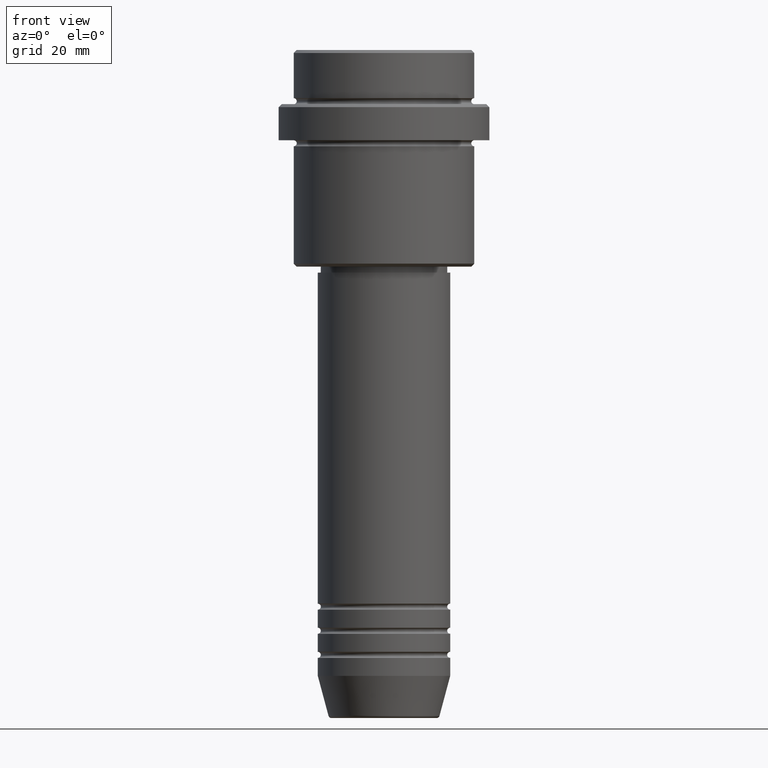
[diagram: clean part render]
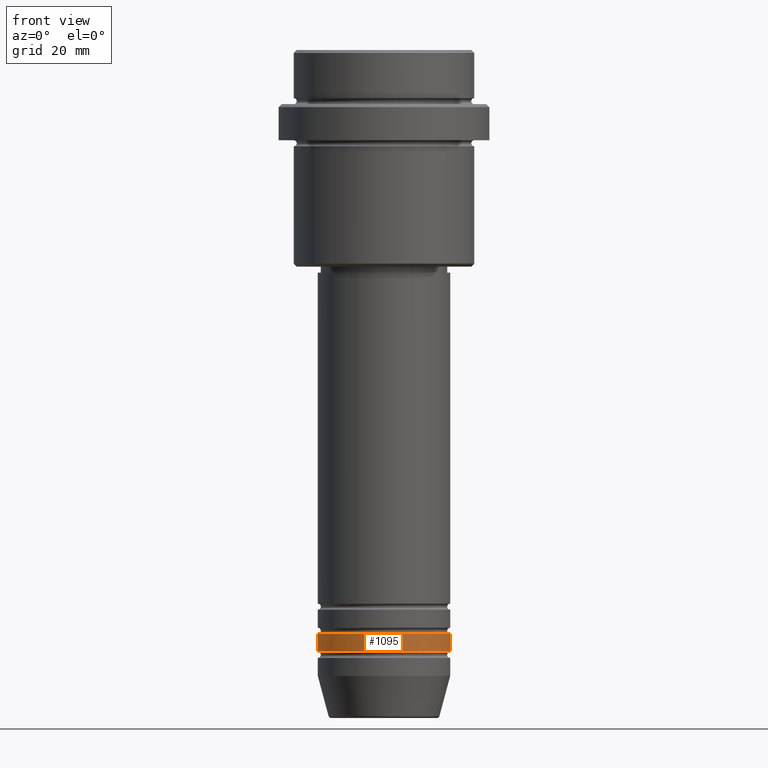
[diagram: same view with one face highlighted and labeled with its STEP entity id]
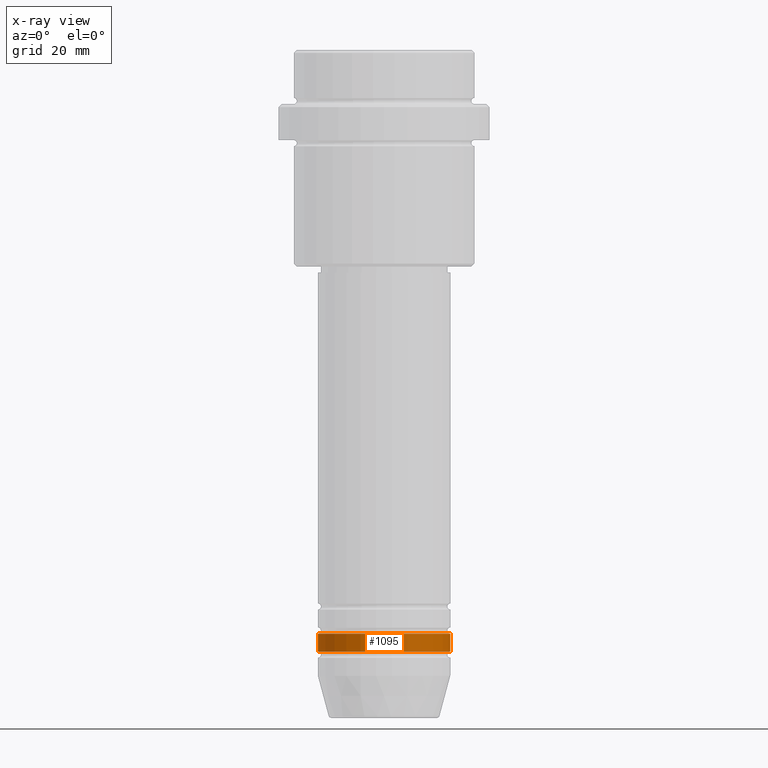
[diagram: x-ray of the same camera — body ghosted, the highlighted face saturated]
A machine part, front view. The second image highlights one B-rep face of the part: STEP entity #1095.
The next image is the same camera in x-ray: the body ghosted, the highlighted face saturated — about 0% of this face is hidden behind the body in this view.
In plain terms, the highlighted cylindrical surface (partial cylindrical patch) has radius 11 mm, axis along (-0, -0, 1).
Its self-contained STEP definition (entity closure, byte-faithful):
#9 = CARTESIAN_POINT ( 'NONE',  ( 11.00000000000000000, 0.000000000000000000, 0.000000000000000000 ) ) ;
#34 = DIRECTION ( 'NONE',  ( 1.000000000000000000, 0.000000000000000000, 0.000000000000000000 ) ) ;
#178 = VECTOR ( 'NONE', #329, 1000.000000000000000 ) ;
#206 = EDGE_LOOP ( 'NONE', ( #957, #490, #375, #979 ) ) ;
#228 = CYLINDRICAL_SURFACE ( 'NONE', #434, 11.00000000000000000 ) ;
#247 = CARTESIAN_POINT ( 'NONE',  ( 0.000000000000000000, 0.000000000000000000, -96.99999999999988631 ) ) ;
#319 = FACE_OUTER_BOUND ( 'NONE', #206, .T. ) ;
#329 = DIRECTION ( 'NONE',  ( -0.000000000000000000, -0.000000000000000000, 1.000000000000000000 ) ) ;
#375 = ORIENTED_EDGE ( 'NONE', *, *, #1047, .T. ) ;
#409 = CIRCLE ( 'NONE', #784, 11.00000000000000000 ) ;
#413 = EDGE_CURVE ( 'NONE', #793, #1364, #1349, .T. ) ;
#434 = AXIS2_PLACEMENT_3D ( 'NONE', #1226, #1319, #1003 ) ;
#483 = CARTESIAN_POINT ( 'NONE',  ( -11.00000000000000000, 1.347111479062088405E-15, -99.99999999999988631 ) ) ;
#490 = ORIENTED_EDGE ( 'NONE', *, *, #413, .T. ) ;
#568 = CARTESIAN_POINT ( 'NONE',  ( 11.00000000000000000, 0.000000000000000000, -96.99999999999988631 ) ) ;
#659 = VERTEX_POINT ( 'NONE', #813 ) ;
#660 = CARTESIAN_POINT ( 'NONE',  ( 11.00000000000000000, 0.000000000000000000, -99.99999999999988631 ) ) ;
#709 = DIRECTION ( 'NONE',  ( -0.000000000000000000, -0.000000000000000000, 1.000000000000000000 ) ) ;
#763 = EDGE_CURVE ( 'NONE', #659, #1138, #409, .T. ) ;
#773 = LINE ( 'NONE', #887, #178 ) ;
#784 = AXIS2_PLACEMENT_3D ( 'NONE', #247, #1129, #945 ) ;
#793 = VERTEX_POINT ( 'NONE', #483 ) ;
#813 = CARTESIAN_POINT ( 'NONE',  ( -11.00000000000000000, 1.347111479062088405E-15, -96.99999999999988631 ) ) ;
#887 = CARTESIAN_POINT ( 'NONE',  ( -11.00000000000000000, 1.347111479062088405E-15, 0.000000000000000000 ) ) ;
#912 = EDGE_CURVE ( 'NONE', #793, #659, #773, .T. ) ;
#945 = DIRECTION ( 'NONE',  ( 1.000000000000000000, 0.000000000000000000, 0.000000000000000000 ) ) ;
#957 = ORIENTED_EDGE ( 'NONE', *, *, #912, .F. ) ;
#979 = ORIENTED_EDGE ( 'NONE', *, *, #763, .F. ) ;
#990 = VECTOR ( 'NONE', #997, 1000.000000000000000 ) ;
#997 = DIRECTION ( 'NONE',  ( -0.000000000000000000, -0.000000000000000000, 1.000000000000000000 ) ) ;
#1003 = DIRECTION ( 'NONE',  ( 1.000000000000000000, 0.000000000000000000, 0.000000000000000000 ) ) ;
#1036 = CARTESIAN_POINT ( 'NONE',  ( 0.000000000000000000, 0.000000000000000000, -99.99999999999988631 ) ) ;
#1047 = EDGE_CURVE ( 'NONE', #1364, #1138, #1312, .T. ) ;
#1053 = AXIS2_PLACEMENT_3D ( 'NONE', #1036, #709, #34 ) ;
#1095 = ADVANCED_FACE ( 'NONE', ( #319 ), #228, .T. ) ;
#1129 = DIRECTION ( 'NONE',  ( -0.000000000000000000, -0.000000000000000000, 1.000000000000000000 ) ) ;
#1138 = VERTEX_POINT ( 'NONE', #568 ) ;
#1226 = CARTESIAN_POINT ( 'NONE',  ( 0.000000000000000000, 0.000000000000000000, 0.000000000000000000 ) ) ;
#1312 = LINE ( 'NONE', #9, #990 ) ;
#1319 = DIRECTION ( 'NONE',  ( -0.000000000000000000, -0.000000000000000000, 1.000000000000000000 ) ) ;
#1349 = CIRCLE ( 'NONE', #1053, 11.00000000000000000 ) ;
#1364 = VERTEX_POINT ( 'NONE', #660 ) ;